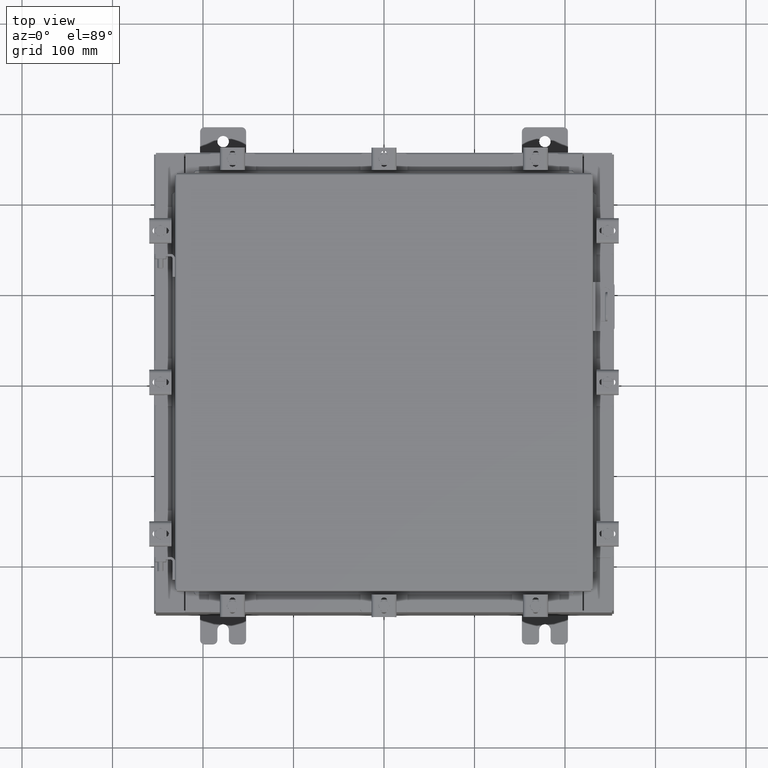
[diagram: clean part render]
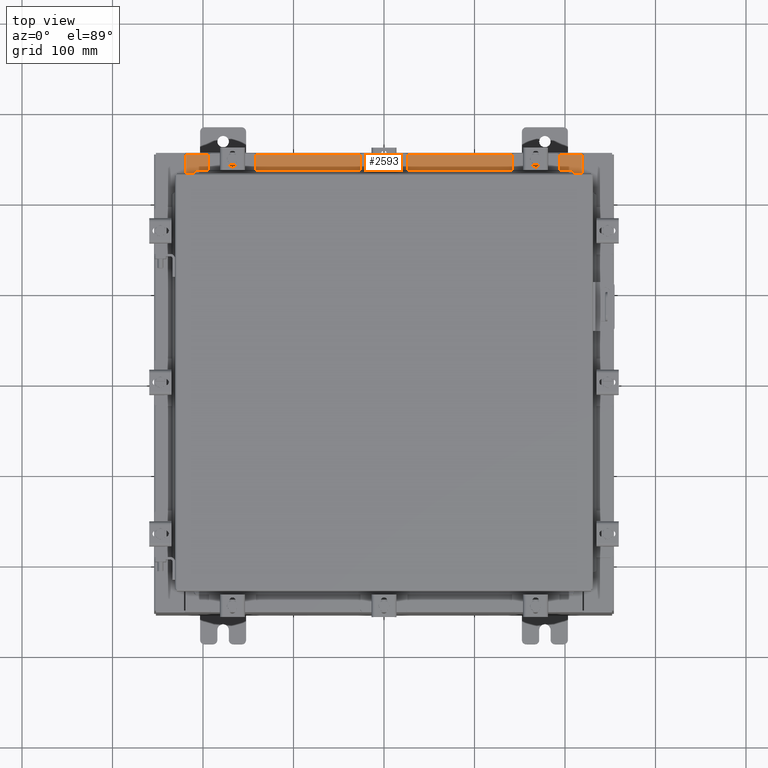
[diagram: same view with one face highlighted and labeled with its STEP entity id]
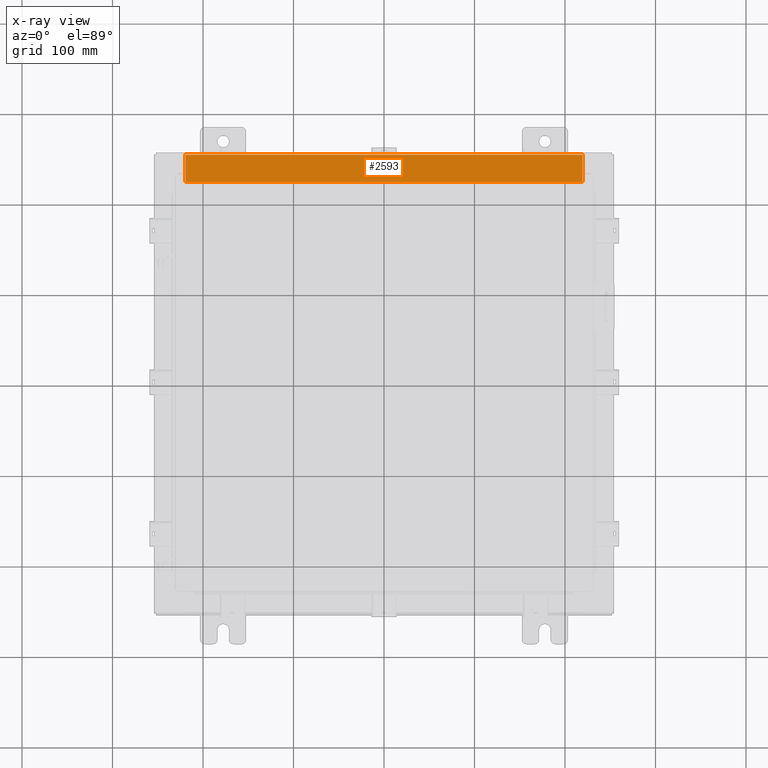
[diagram: x-ray of the same camera — body ghosted, the highlighted face saturated]
A machine part, top view. The second image highlights one B-rep face of the part: STEP entity #2593.
The next image is the same camera in x-ray: the body ghosted, the highlighted face saturated — about 0% of this face is hidden behind the body in this view.
In plain terms, the highlighted planar face has unit normal (0, 0, 1).
Its self-contained STEP definition (entity closure, byte-faithful):
#557 = EDGE_CURVE ( 'NONE', #15557, #15679, #18532, .T. ) ;
#803 = LINE ( 'NONE', #20642, #14204 ) ;
#1624 = VERTEX_POINT ( 'NONE', #21931 ) ;
#2212 = LINE ( 'NONE', #15533, #6293 ) ;
#2593 = ADVANCED_FACE ( 'NONE', ( #7304 ), #20487, .T. ) ;
#4059 = CARTESIAN_POINT ( 'NONE',  ( -8.637200000000000000, -0.08770000000000000000, 4.000000000000000000 ) ) ;
#5189 = EDGE_CURVE ( 'NONE', #1624, #7439, #18725, .T. ) ;
#5781 = CARTESIAN_POINT ( 'NONE',  ( 8.637200000000000000, -1.300299999999999800, 4.000000000000004400 ) ) ;
#6293 = VECTOR ( 'NONE', #8572, 39.37007874015748100 ) ;
#6523 = EDGE_CURVE ( 'NONE', #7439, #15557, #2212, .T. ) ;
#7304 = FACE_OUTER_BOUND ( 'NONE', #18046, .T. ) ;
#7439 = VERTEX_POINT ( 'NONE', #19922 ) ;
#7662 = CARTESIAN_POINT ( 'NONE',  ( 0.0000000000000000000, 1.425992975200418500E-014, 4.000000000000000000 ) ) ;
#7822 = DIRECTION ( 'NONE',  ( 0.0000000000000000000, -1.000000000000000000, 3.566381192773190000E-015 ) ) ;
#7911 = ORIENTED_EDGE ( 'NONE', *, *, #15191, .T. ) ;
#8572 = DIRECTION ( 'NONE',  ( -1.000000000000000000, 0.0000000000000000000, 0.0000000000000000000 ) ) ;
#10699 = AXIS2_PLACEMENT_3D ( 'NONE', #7662, #11542, #7822 ) ;
#11542 = DIRECTION ( 'NONE',  ( 0.0000000000000000000, 3.566381192773190000E-015, 1.000000000000000000 ) ) ;
#12437 = ORIENTED_EDGE ( 'NONE', *, *, #557, .F. ) ;
#12783 = DIRECTION ( 'NONE',  ( -0.0000000000000000000, -1.000000000000000000, 3.566381192773190000E-015 ) ) ;
#14204 = VECTOR ( 'NONE', #15463, 39.37007874015748100 ) ;
#15191 = EDGE_CURVE ( 'NONE', #1624, #15679, #803, .T. ) ;
#15325 = DIRECTION ( 'NONE',  ( -0.0000000000000000000, 1.000000000000000000, -3.566381192773190000E-015 ) ) ;
#15463 = DIRECTION ( 'NONE',  ( -1.000000000000000000, 3.162886113166609200E-017, -1.128005754888089100E-031 ) ) ;
#15523 = ORIENTED_EDGE ( 'NONE', *, *, #6523, .F. ) ;
#15533 = CARTESIAN_POINT ( 'NONE',  ( 8.637200000000000000, -1.287299999999999900, 4.000000000000003600 ) ) ;
#15557 = VERTEX_POINT ( 'NONE', #21284 ) ;
#15679 = VERTEX_POINT ( 'NONE', #4059 ) ;
#15952 = VECTOR ( 'NONE', #12783, 39.37007874015748100 ) ;
#18046 = EDGE_LOOP ( 'NONE', ( #12437, #15523, #19265, #7911 ) ) ;
#18532 = LINE ( 'NONE', #21803, #22547 ) ;
#18725 = LINE ( 'NONE', #5781, #15952 ) ;
#19265 = ORIENTED_EDGE ( 'NONE', *, *, #5189, .F. ) ;
#19922 = CARTESIAN_POINT ( 'NONE',  ( 8.637200000000000000, -1.287299999999999900, 4.000000000000004400 ) ) ;
#20487 = PLANE ( 'NONE',  #10699 ) ;
#20642 = CARTESIAN_POINT ( 'NONE',  ( -2.773851121247567100E-018, -0.08770000000000000000, 4.000000000000000900 ) ) ;
#21284 = CARTESIAN_POINT ( 'NONE',  ( -8.637200000000000000, -1.287299999999999200, 4.000000000000004400 ) ) ;
#21803 = CARTESIAN_POINT ( 'NONE',  ( -8.637200000000000000, -0.07469999999999973900, 4.000000000000000000 ) ) ;
#21931 = CARTESIAN_POINT ( 'NONE',  ( 8.637200000000000000, -0.08769999999999965300, 4.000000000000000000 ) ) ;
#22547 = VECTOR ( 'NONE', #15325, 39.37007874015748100 ) ;